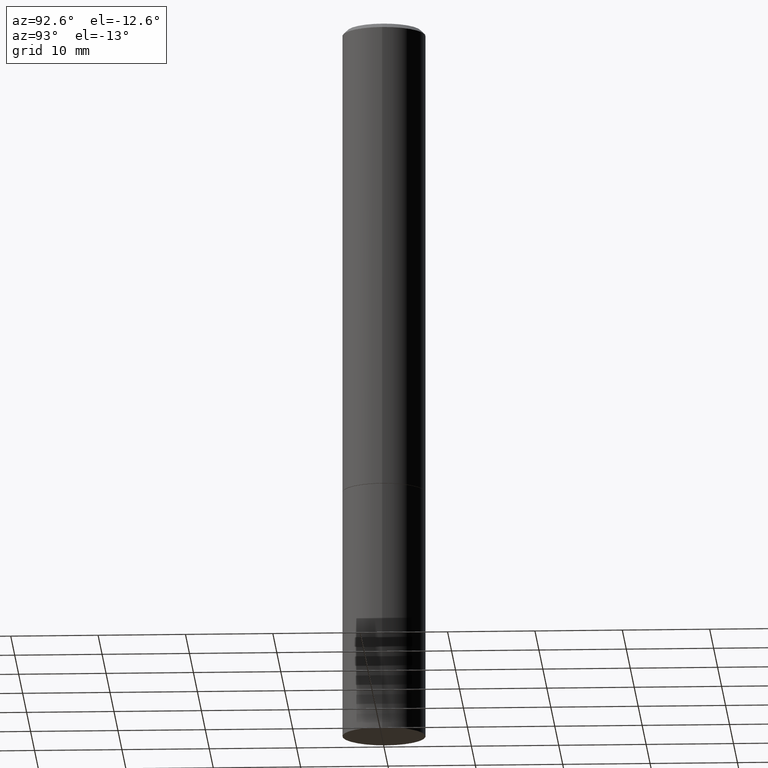
[diagram: clean part render]
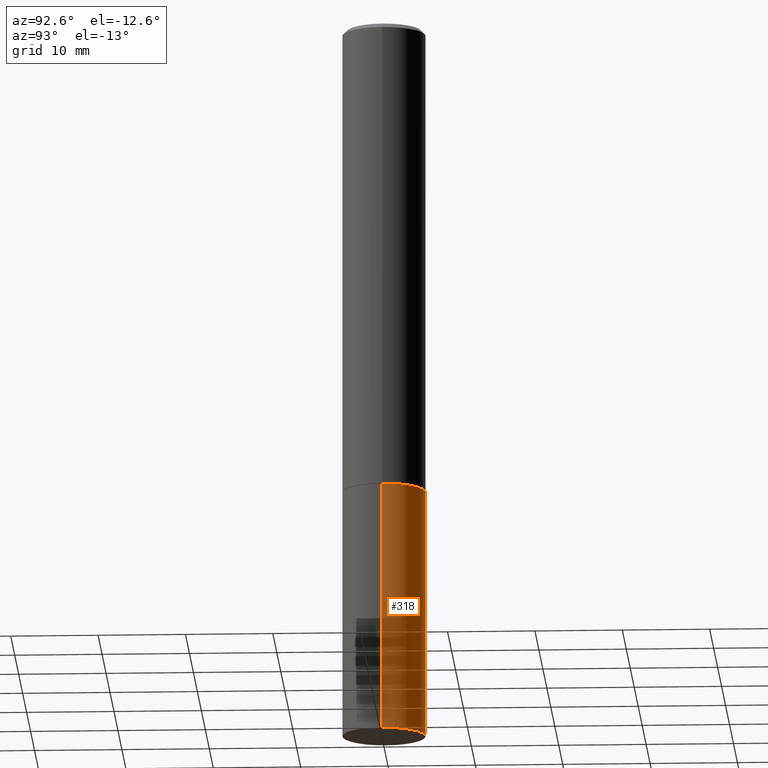
[diagram: same view with one face highlighted and labeled with its STEP entity id]
A machine part, auxiliary view. The second image highlights one B-rep face of the part: STEP entity #318.
In plain terms, the highlighted cylindrical surface (partial cylindrical patch) has radius 4.7625 mm, axis along (-0, 0, 1).
Its self-contained STEP definition (entity closure, byte-faithful):
#13 = CARTESIAN_POINT ( 'NONE',  ( 5.196621213143415268E-29, -7.419397845041683624E-15, -2.125000000000000000 ) ) ;
#16 = CYLINDRICAL_SURFACE ( 'NONE', #335, 0.1875000000000000278 ) ;
#23 = VERTEX_POINT ( 'NONE', #311 ) ;
#28 = ORIENTED_EDGE ( 'NONE', *, *, #310, .F. ) ;
#34 = LINE ( 'NONE', #144, #339 ) ;
#35 = AXIS2_PLACEMENT_3D ( 'NONE', #175, #36, #146 ) ;
#36 = DIRECTION ( 'NONE',  ( -2.445468806185136597E-29, 3.491481338843145583E-15, 1.000000000000000000 ) ) ;
#63 = CARTESIAN_POINT ( 'NONE',  ( -0.1875000000000000278, -8.051088468590765387E-15, -2.125000000000000000 ) ) ;
#69 = FACE_OUTER_BOUND ( 'NONE', #336, .T. ) ;
#70 = CARTESIAN_POINT ( 'NONE',  ( 0.000000000000000000, 0.000000000000000000, 0.000000000000000000 ) ) ;
#81 = VERTEX_POINT ( 'NONE', #234 ) ;
#83 = CIRCLE ( 'NONE', #35, 0.1875000000000000278 ) ;
#124 = DIRECTION ( 'NONE',  ( -2.445468806185136597E-29, 3.491481338843145583E-15, 1.000000000000000000 ) ) ;
#125 = DIRECTION ( 'NONE',  ( -2.445468806185136597E-29, 3.491481338843145583E-15, 1.000000000000000000 ) ) ;
#144 = CARTESIAN_POINT ( 'NONE',  ( 0.1875000000000000278, -1.309305502066175008E-15, 9.142831454617381013E-30 ) ) ;
#146 = DIRECTION ( 'NONE',  ( 1.000000000000000000, -6.982962677686261189E-15, 0.000000000000000000 ) ) ;
#152 = LINE ( 'NONE', #209, #171 ) ;
#163 = ORIENTED_EDGE ( 'NONE', *, *, #210, .F. ) ;
#171 = VECTOR ( 'NONE', #242, 39.37007874015748143 ) ;
#175 = CARTESIAN_POINT ( 'NONE',  ( 7.947773620101693940E-29, -1.134731435124022443E-14, -3.250000000000000000 ) ) ;
#209 = CARTESIAN_POINT ( 'NONE',  ( -0.1875000000000000278, 1.332267629550188046E-15, -9.223003294227947991E-30 ) ) ;
#210 = EDGE_CURVE ( 'NONE', #81, #358, #34, .T. ) ;
#216 = ORIENTED_EDGE ( 'NONE', *, *, #228, .T. ) ;
#221 = VERTEX_POINT ( 'NONE', #63 ) ;
#227 = AXIS2_PLACEMENT_3D ( 'NONE', #13, #125, #293 ) ;
#228 = EDGE_CURVE ( 'NONE', #81, #23, #83, .T. ) ;
#234 = CARTESIAN_POINT ( 'NONE',  ( 0.1875000000000000278, -1.265661985330639786E-14, -3.250000000000000000 ) ) ;
#242 = DIRECTION ( 'NONE',  ( -2.445468806185136877E-29, 3.491481338843145188E-15, 1.000000000000000000 ) ) ;
#260 = DIRECTION ( 'NONE',  ( -2.445468806185136877E-29, 3.491481338843145188E-15, 1.000000000000000000 ) ) ;
#278 = EDGE_CURVE ( 'NONE', #23, #221, #152, .T. ) ;
#281 = ORIENTED_EDGE ( 'NONE', *, *, #278, .T. ) ;
#293 = DIRECTION ( 'NONE',  ( 1.000000000000000000, -6.982962677686266711E-15, 0.000000000000000000 ) ) ;
#310 = EDGE_CURVE ( 'NONE', #358, #221, #320, .T. ) ;
#311 = CARTESIAN_POINT ( 'NONE',  ( -0.1875000000000000278, -8.051088468590765387E-15, -3.250000000000000000 ) ) ;
#318 = ADVANCED_FACE ( 'NONE', ( #69 ), #16, .T. ) ;
#320 = CIRCLE ( 'NONE', #227, 0.1875000000000000278 ) ;
#322 = DIRECTION ( 'NONE',  ( 1.000000000000000000, -6.982962677686265922E-15, 4.876176775795935793E-29 ) ) ;
#335 = AXIS2_PLACEMENT_3D ( 'NONE', #70, #124, #322 ) ;
#336 = EDGE_LOOP ( 'NONE', ( #216, #281, #28, #163 ) ) ;
#339 = VECTOR ( 'NONE', #260, 39.37007874015748143 ) ;
#344 = CARTESIAN_POINT ( 'NONE',  ( 0.1875000000000000278, -8.728703347107858632E-15, -2.125000000000000000 ) ) ;
#358 = VERTEX_POINT ( 'NONE', #344 ) ;